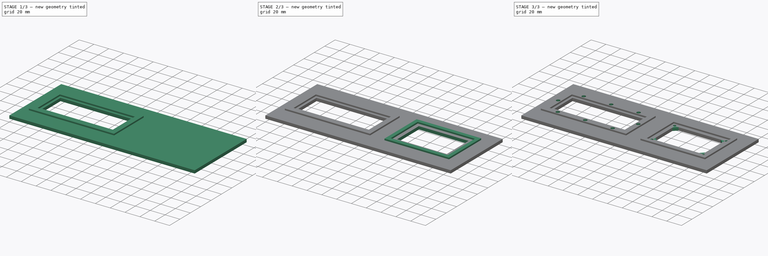
[diagram: build sequence overview — one tinted view per stage of 3, left to right]
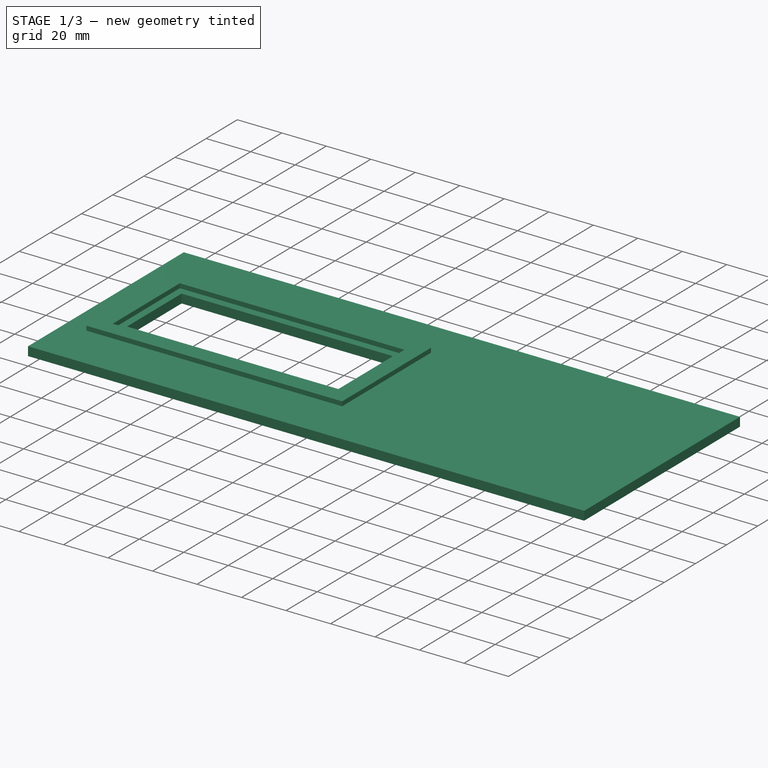
[diagram: stage 1 of 3 — iso view after this stage's code; geometry added in this stage tinted green]
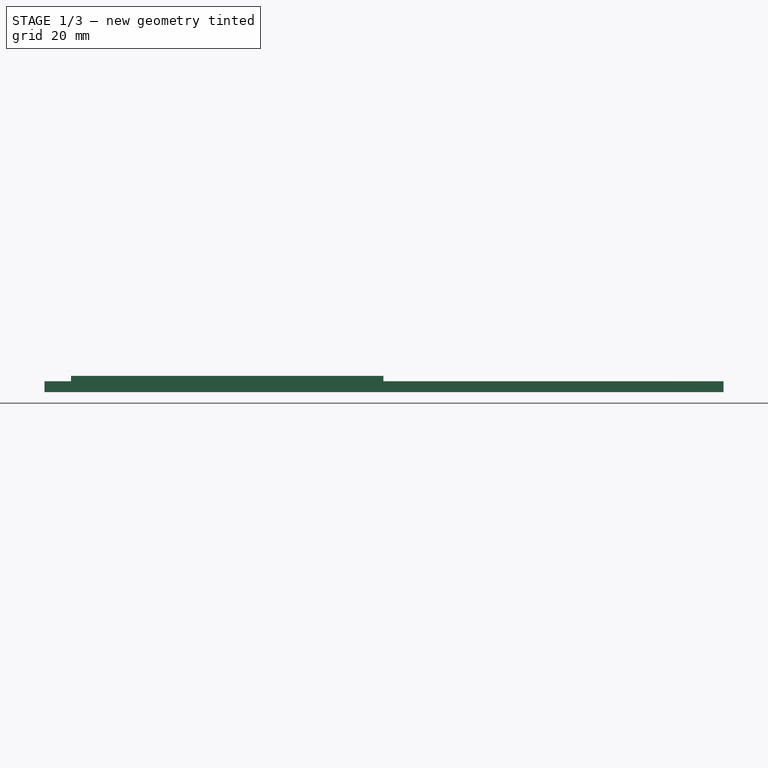
[diagram: stage 1 of 3 — front view after this stage's code; geometry added in this stage tinted green]
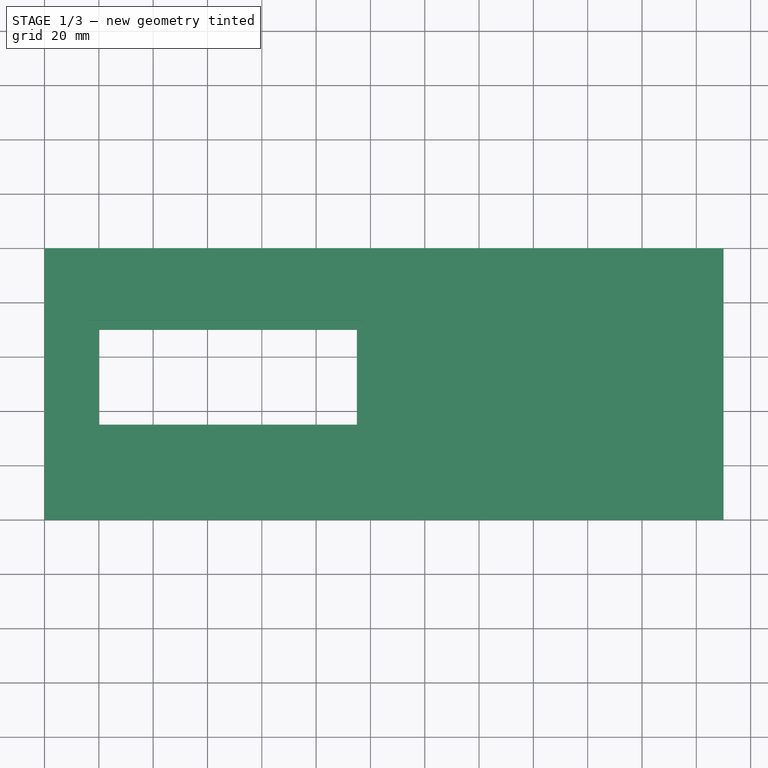
[diagram: stage 1 of 3 — top view after this stage's code; geometry added in this stage tinted green]
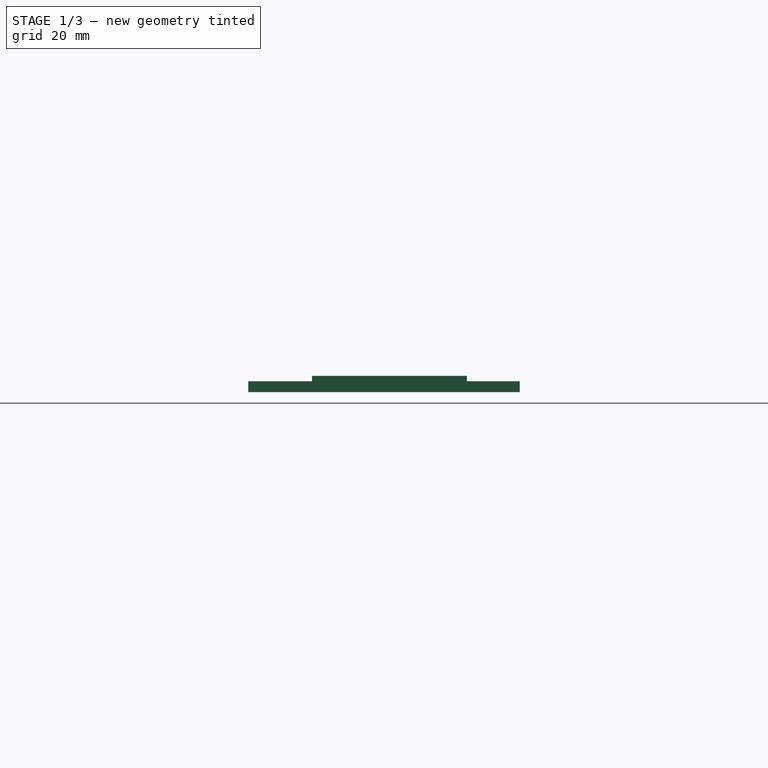
[diagram: stage 1 of 3 — right view after this stage's code; geometry added in this stage tinted green]
FCSTD DOCUMENT  (FreeCAD 0.16R6490 (Git))
Label: control_box_test_fixture_top
License: CreativeCommons Attribution-ShareAlike
LicenseURL: http://creativecommons.org/licenses/by-sa/4.0/
objects: Sketcher::SketchObject×7, PartDesign::Pocket×4, PartDesign::Pad×3, PartDesign::Chamfer×1
note: 22 computed .brp shape members not serialized (recipe doc carries the construction recipe); baked Part::Feature solids carry a one-line shape summary decoded from their .brp

FEATURE [Sketcher::SketchObject] Sketch
  Placement = pos=(0,-100,0) rot=(0,0,1;0rad)
  sketch-geometry (4):
    g0: LineSegment StartX=0 StartY=0 StartZ=0 EndX=250 EndY=0 EndZ=0
    g1: LineSegment StartX=250 StartY=0 StartZ=0 EndX=250 EndY=100 EndZ=0
    g2: LineSegment StartX=250 StartY=100 StartZ=0 EndX=0 EndY=100 EndZ=0
    g3: LineSegment StartX=0 StartY=100 StartZ=0 EndX=0 EndY=0 EndZ=0
  constraints (11):
    c: Coincident(g0,g1)
    c: Coincident(g1,g2)
    c: Coincident(g2,g3)
    c: Coincident(g3,g0)
    c: Horizontal(g0)
    c: Horizontal(g2)
    c: Vertical(g1)
    c: Vertical(g3)
    c: Coincident(g0,g-1)
    c: DistanceY(g3) = -100
    c: DistanceX(g2) = -250
FEATURE [PartDesign::Pad] Pad
  Length = 4
  Length2 = 100
  Placement = pos=(0,-100,0) rot=(0,0,1;0rad)
  Sketch = -> Sketch
  Type = 0
FEATURE [Sketcher::SketchObject] Sketch001
  Placement = pos=(0,-100,4) rot=(0,0,1;0rad)
  Support = -> Pad [Face6]
  sketch-geometry (4):
    g0: LineSegment StartX=20 StartY=70 StartZ=0 EndX=115 EndY=70 EndZ=0
    g1: LineSegment StartX=115 StartY=70 StartZ=0 EndX=115 EndY=35 EndZ=0
    g2: LineSegment StartX=115 StartY=35 StartZ=0 EndX=20 EndY=35 EndZ=0
    g3: LineSegment StartX=20 StartY=35 StartZ=0 EndX=20 EndY=70 EndZ=0
  constraints (12):
    c: Coincident(g0,g1)
    c: Coincident(g1,g2)
    c: Coincident(g2,g3)
    c: Coincident(g3,g0)
    c: Horizontal(g0)
    c: Horizontal(g2)
    c: Vertical(g1)
    c: Vertical(g3)
    c: DistanceY(g3) = 35
    c: DistanceX(g0) = 95
    c: DistanceY(g-1,g2) = 35
    c: DistanceX(g-1,g2) = 20
FEATURE [PartDesign::Pocket] Pocket
  Length = 5
  Placement = pos=(0,-100,0) rot=(0,0,1;0rad)
  Sketch = -> Sketch001
  Type = 0
FEATURE [Sketcher::SketchObject] Sketch002
  ExternalGeometry = -> [Pocket]
  Placement = pos=(0,-100,4) rot=(0,0,1;0rad)
  Support = -> Pocket [Face5]
  sketch-geometry (8):
    g0: LineSegment StartX=16.75 StartY=73.5 StartZ=0 EndX=117.75 EndY=73.5 EndZ=0
    g1: LineSegment StartX=117.75 StartY=73.5 StartZ=0 EndX=117.75 EndY=30.5 EndZ=0
    g2: LineSegment StartX=117.75 StartY=30.5 StartZ=0 EndX=16.75 EndY=30.5 EndZ=0
    g3: LineSegment StartX=16.75 StartY=30.5 StartZ=0 EndX=16.75 EndY=73.5 EndZ=0
    g4: LineSegment StartX=9.75 StartY=80.5 StartZ=0 EndX=124.75 EndY=80.5 EndZ=0
    g5: LineSegment StartX=124.75 StartY=80.5 StartZ=0 EndX=124.75 EndY=23.5 EndZ=0
    g6: LineSegment StartX=124.75 StartY=23.5 StartZ=0 EndX=9.75 EndY=23.5 EndZ=0
    g7: LineSegment StartX=9.75 StartY=23.5 StartZ=0 EndX=9.75 EndY=80.5 EndZ=0
  constraints (24):
    c: Coincident(g0,g1)
    c: Coincident(g1,g2)
    c: Coincident(g2,g3)
    c: Coincident(g3,g0)
    c: Horizontal(g0)
    c: Horizontal(g2)
    c: Vertical(g1)
    c: Vertical(g3)
    c: DistanceY(g3) = 43
    c: DistanceX(g0) = 101
    c: DistanceY(g-4,g2) = -4.5
    c: DistanceX(g-4,g2) = -3.25
    c: Coincident(g4,g5)
    c: Coincident(g5,g6)
    c: Coincident(g6,g7)
    c: Coincident(g7,g4)
    c: Horizontal(g4)
    c: Horizontal(g6)
    c: Vertical(g5)
    c: Vertical(g7)
    c: DistanceY(g6,g2) = 7
    c: DistanceX(g2,g6) = -7
    c: DistanceY(g0,g4) = 7
    c: DistanceX(g0,g4) = 7
FEATURE [PartDesign::Pad] Pad001
  Length = 2
  Length2 = 100
  Placement = pos=(0,-100,0) rot=(0,0,1;0rad)
  Sketch = -> Sketch002
  Type = 0
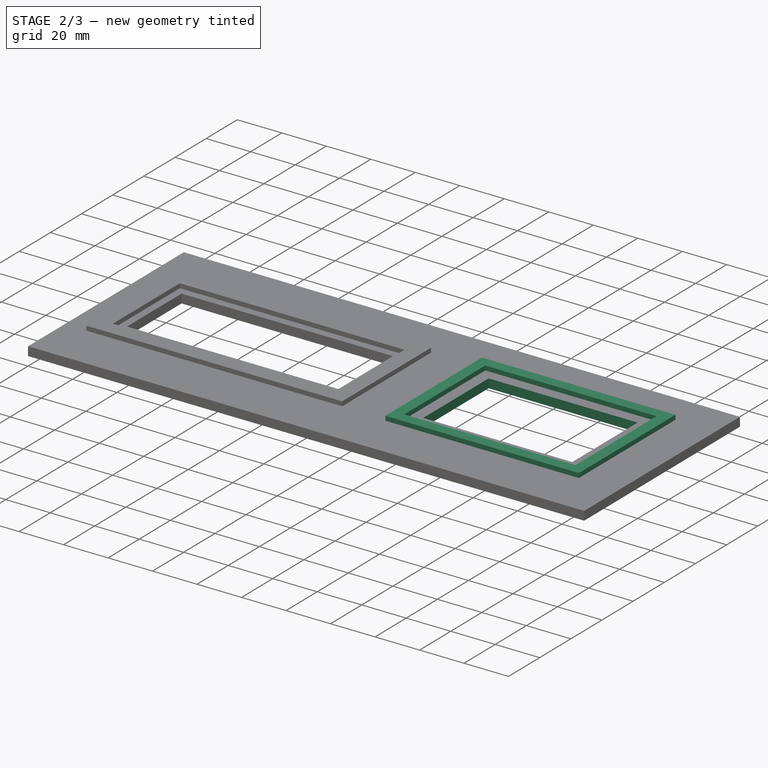
[diagram: stage 2 of 3 — iso view after this stage's code; geometry added in this stage tinted green]
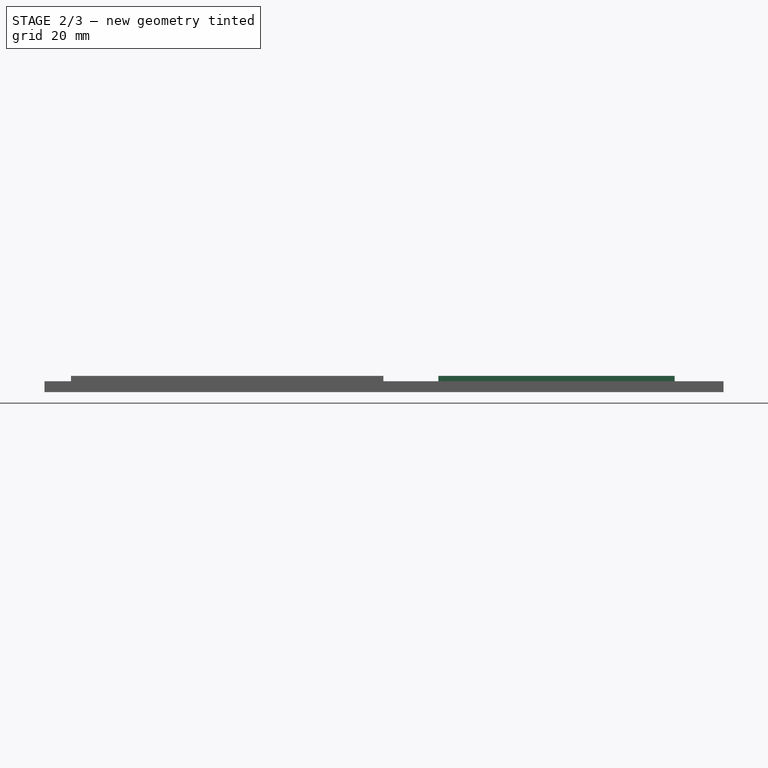
[diagram: stage 2 of 3 — front view after this stage's code; geometry added in this stage tinted green]
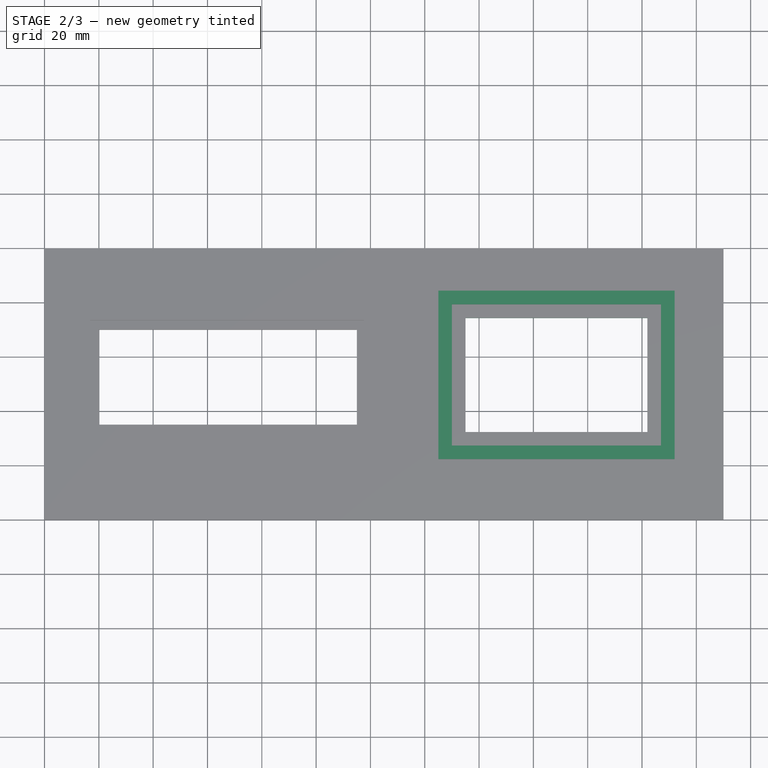
[diagram: stage 2 of 3 — top view after this stage's code; geometry added in this stage tinted green]
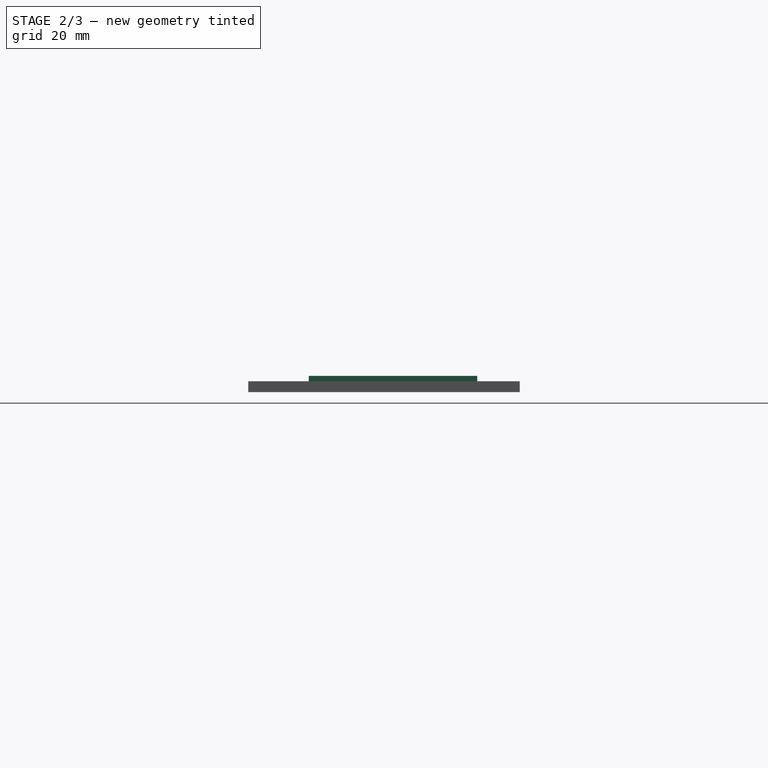
[diagram: stage 2 of 3 — right view after this stage's code; geometry added in this stage tinted green]
FEATURE [Sketcher::SketchObject] Sketch003
  Placement = pos=(0,-100,4) rot=(0,0,1;0rad)
  Support = -> Pad001 [Face5]
  sketch-geometry (8):
    g0: LineSegment StartX=150 StartY=27.3141 StartZ=0 EndX=227 EndY=27.3141 EndZ=0
    g1: LineSegment StartX=227 StartY=27.3141 StartZ=0 EndX=227 EndY=79.3141 EndZ=0
    g2: LineSegment StartX=227 StartY=79.3141 StartZ=0 EndX=150 EndY=79.3141 EndZ=0
    g3: LineSegment StartX=150 StartY=79.3141 StartZ=0 EndX=150 EndY=27.3141 EndZ=0
    g4: LineSegment StartX=145 StartY=84.3141 StartZ=0 EndX=232 EndY=84.3141 EndZ=0
    g5: LineSegment StartX=232 StartY=84.3141 StartZ=0 EndX=232 EndY=22.3141 EndZ=0
    g6: LineSegment StartX=232 StartY=22.3141 StartZ=0 EndX=145 EndY=22.3141 EndZ=0
    g7: LineSegment StartX=145 StartY=22.3141 StartZ=0 EndX=145 EndY=84.3141 EndZ=0
  constraints (22):
    c: Coincident(g0,g1)
    c: Coincident(g1,g2)
    c: Coincident(g2,g3)
    c: Coincident(g3,g0)
    c: Horizontal(g0)
    c: Horizontal(g2)
    c: Vertical(g1)
    c: Vertical(g3)
    c: DistanceX(g0) = 77
    c: DistanceY(g1) = 52
    c: Coincident(g4,g5)
    c: Coincident(g5,g6)
    c: Coincident(g6,g7)
    c: Coincident(g7,g4)
    c: Horizontal(g4)
    c: Horizontal(g6)
    c: Vertical(g5)
    c: Vertical(g7)
    c: DistanceY(g0,g6) = -5
    c: DistanceX(g0,g6) = -5
    c: DistanceY(g4,g1) = -5
    c: DistanceX(g4,g1) = -5
FEATURE [PartDesign::Pad] Pad002
  Length = 2
  Length2 = 100
  Placement = pos=(0,-100,0) rot=(0,0,1;0rad)
  Sketch = -> Sketch003
  Type = 0
FEATURE [Sketcher::SketchObject] Sketch004
  ExternalGeometry = -> [Pad002]
  Placement = pos=(0,-100,4) rot=(0,0,1;0rad)
  Support = -> Pad002 [Face30]
  sketch-geometry (4):
    g0: LineSegment StartX=155 StartY=74.3141 StartZ=0 EndX=222 EndY=74.3141 EndZ=0
    g1: LineSegment StartX=222 StartY=74.3141 StartZ=0 EndX=222 EndY=32.3141 EndZ=0
    g2: LineSegment StartX=222 StartY=32.3141 StartZ=0 EndX=155 EndY=32.3141 EndZ=0
    g3: LineSegment StartX=155 StartY=32.3141 StartZ=0 EndX=155 EndY=74.3141 EndZ=0
  constraints (12):
    c: Coincident(g0,g1)
    c: Coincident(g1,g2)
    c: Coincident(g2,g3)
    c: Coincident(g3,g0)
    c: Horizontal(g0)
    c: Horizontal(g2)
    c: Vertical(g1)
    c: Vertical(g3)
    c: DistanceX(g0,g-3) = -5
    c: DistanceY(g0,g-3) = 5
    c: DistanceX(g-4,g1) = -5
    c: DistanceY(g1,g-4) = -5
FEATURE [PartDesign::Pocket] Pocket001
  Length = 5
  Placement = pos=(0,-100,0) rot=(0,0,1;0rad)
  Sketch = -> Sketch004
  Type = 0
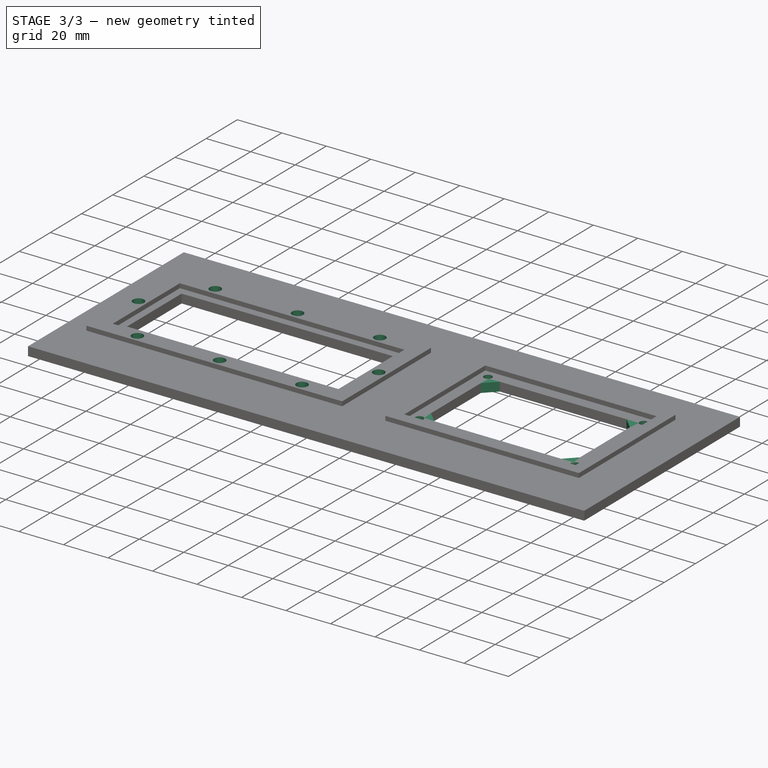
[diagram: stage 3 of 3 — iso view after this stage's code; geometry added in this stage tinted green]
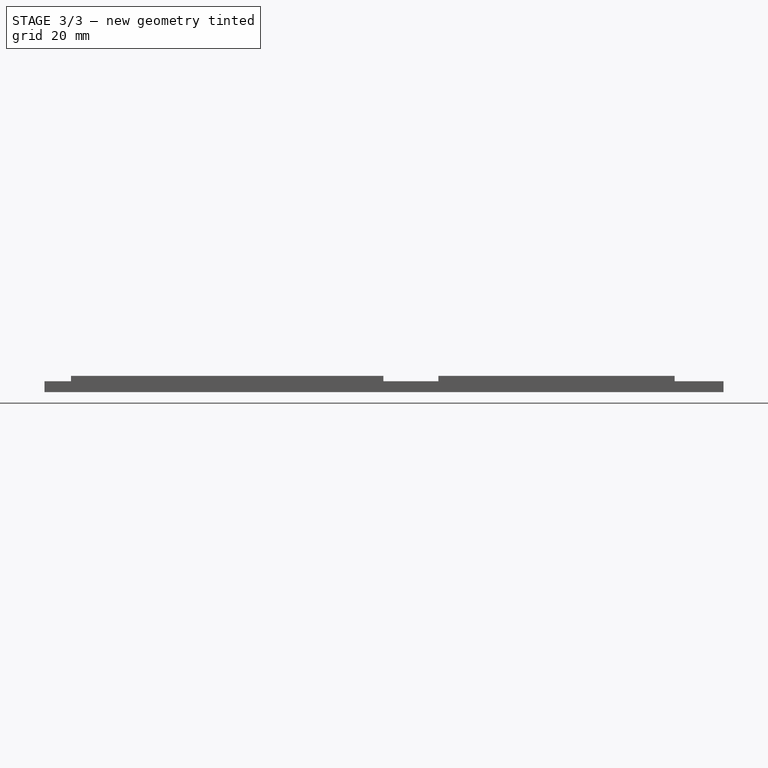
[diagram: stage 3 of 3 — front view after this stage's code; geometry added in this stage tinted green]
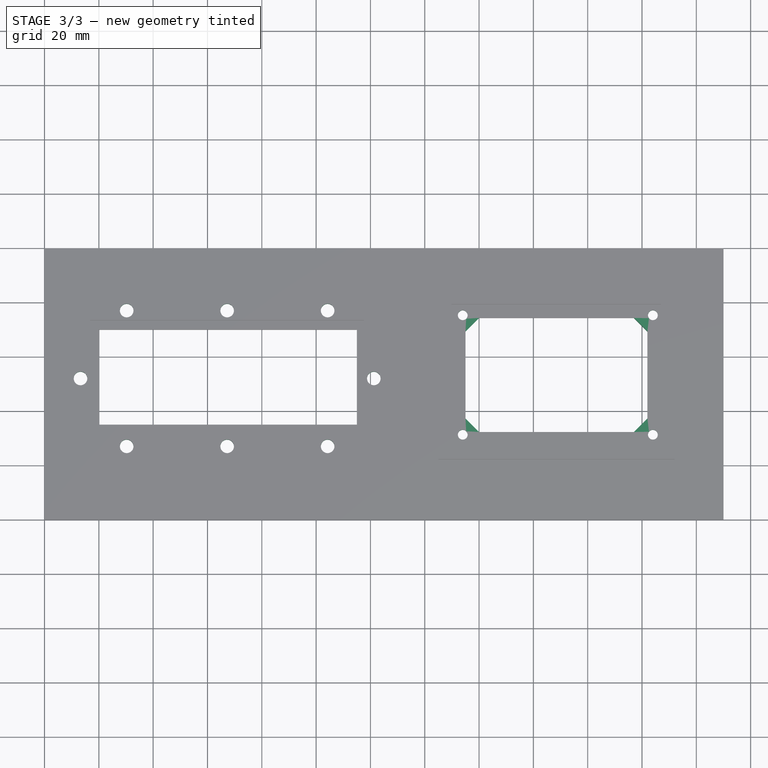
[diagram: stage 3 of 3 — top view after this stage's code; geometry added in this stage tinted green]
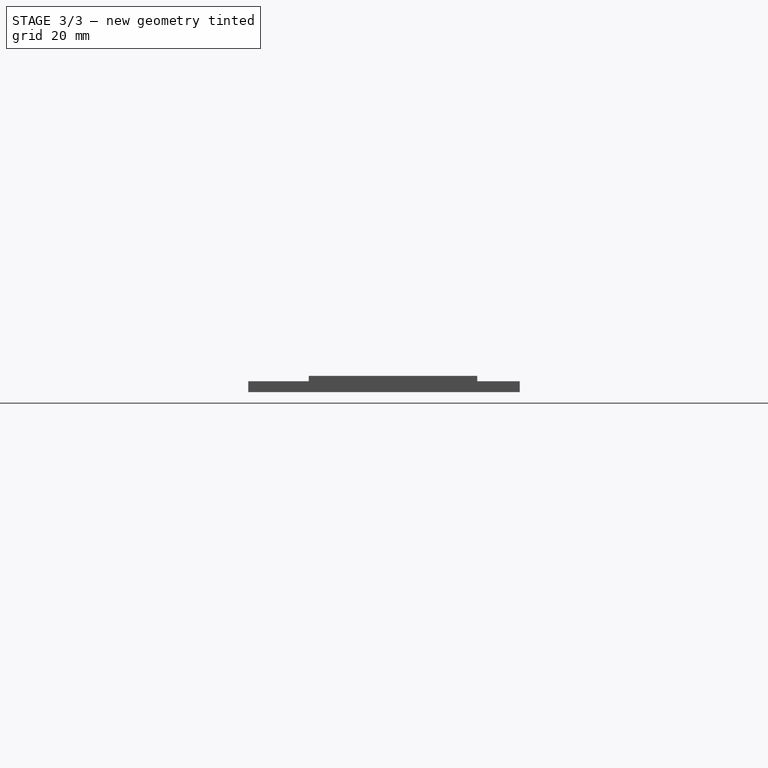
[diagram: stage 3 of 3 — right view after this stage's code; geometry added in this stage tinted green]
FEATURE [PartDesign::Chamfer] Chamfer
  Base = -> Pocket001 [Edge39,Edge38,Edge41,Edge43]
  Placement = pos=(0,-100,0) rot=(0,0,1;0rad)
  Size = 5
FEATURE [Sketcher::SketchObject] Sketch005
  ExternalGeometry = -> [Chamfer]
  Placement = pos=(0,-100,4) rot=(0,0,1;0rad)
  Support = -> Chamfer [Face18]
  sketch-geometry (8):
    g0: LineSegment [constr] StartX=154 StartY=75.3141 StartZ=0 EndX=224 EndY=75.3141 EndZ=0
    g1: LineSegment [constr] StartX=224 StartY=75.3141 StartZ=0 EndX=224 EndY=31.3141 EndZ=0
    g2: LineSegment [constr] StartX=224 StartY=31.3141 StartZ=0 EndX=154 EndY=31.3141 EndZ=0
    g3: LineSegment [constr] StartX=154 StartY=31.3141 StartZ=0 EndX=154 EndY=75.3141 EndZ=0
    g4: Circle CenterX=154 CenterY=75.3141 CenterZ=0 NormalX=0 NormalY=0 NormalZ=1 Radius=1.8
    g5: Circle CenterX=154 CenterY=31.3141 CenterZ=0 NormalX=0 NormalY=0 NormalZ=1 Radius=1.8
    g6: Circle CenterX=224 CenterY=31.3141 CenterZ=0 NormalX=0 NormalY=0 NormalZ=1 Radius=1.8
    g7: Circle CenterX=224 CenterY=75.3141 CenterZ=0 NormalX=0 NormalY=0 NormalZ=1 Radius=1.8
  constraints (20):
    c: Coincident(g0,g1)
    c: Coincident(g1,g2)
    c: Coincident(g3,g0)
    c: Horizontal(g0)
    c: Horizontal(g2)
    c: Vertical(g1)
    c: Vertical(g3)
    c: Coincident(g0,g4)
    c: Coincident(g0,g7)
    c: Coincident(g1,g6)
    c: Radius(g4) = 1.8
    c: Equal(g4,g7)
    c: Equal(g4,g6)
    c: Equal(g4,g5)
    c: DistanceX(g0) = 70
    c: DistanceY(g3) = 44
    c: DistanceX(g-4,g2) = 4
    c: Coincident(g2,g3)
    c: Coincident(g2,g5)
    c: DistanceY(g2,g-4) = -4
FEATURE [PartDesign::Pocket] Pocket002
  Length = 5
  Placement = pos=(0,-100,0) rot=(0,0,1;0rad)
  Sketch = -> Sketch005
  Type = 0
FEATURE [Sketcher::SketchObject] Sketch006
  ExternalGeometry = -> [Pocket002]
  Placement = pos=(0,-100,6) rot=(0,0,1;0rad)
  Support = -> Pocket002 [Face41]
  sketch-geometry (12):
    g0: LineSegment [constr] StartX=13.25 StartY=77 StartZ=0 EndX=121.25 EndY=77 EndZ=0
    g1: LineSegment [constr] StartX=121.25 StartY=77 StartZ=0 EndX=121.25 EndY=27 EndZ=0
    g2: LineSegment [constr] StartX=121.25 StartY=27 StartZ=0 EndX=13.25 EndY=27 EndZ=0
    g3: LineSegment [constr] StartX=13.25 StartY=27 StartZ=0 EndX=13.25 EndY=77 EndZ=0
    g4: Circle CenterX=30.25 CenterY=77 CenterZ=0 NormalX=0 NormalY=0 NormalZ=1 Radius=2.5
    g5: Circle CenterX=67.25 CenterY=77 CenterZ=0 NormalX=0 NormalY=0 NormalZ=1 Radius=2.5
    g6: Circle CenterX=104.25 CenterY=77 CenterZ=0 NormalX=0 NormalY=0 NormalZ=1 Radius=2.5
    g7: Circle CenterX=121.25 CenterY=52 CenterZ=0 NormalX=0 NormalY=0 NormalZ=1 Radius=2.5
    g8: Circle CenterX=104.25 CenterY=27 CenterZ=0 NormalX=0 NormalY=0 NormalZ=1 Radius=2.5
    g9: Circle CenterX=67.25 CenterY=27 CenterZ=0 NormalX=0 NormalY=0 NormalZ=1 Radius=2.5
    g10: Circle CenterX=30.25 CenterY=27 CenterZ=0 NormalX=0 NormalY=0 NormalZ=1 Radius=2.5
    g11: Circle CenterX=13.25 CenterY=52 CenterZ=0 NormalX=0 NormalY=0 NormalZ=1 Radius=2.5
  constraints (30):
    c: Coincident(g0,g1)
    c: Coincident(g1,g2)
    c: Coincident(g2,g3)
    c: Coincident(g3,g0)
    c: Horizontal(g0)
    c: Horizontal(g2)
    c: Vertical(g1)
    c: Vertical(g3)
    c: PointOnObject(g4,g0)
    c: PointOnObject(g5,g0)
    c: PointOnObject(g6,g0)
    c: PointOnObject(g7,g1)
    c: PointOnObject(g8,g2)
    c: PointOnObject(g9,g2)
    c: PointOnObject(g10,g2)
    c: PointOnObject(g11,g3)
    c: Radius(g4) = 2.5
    c: Equal(g4, g5-g11) x7
    c: DistanceX(g9,g5) = 0
    c: DistanceX(g4,g10) = 0
    c: DistanceX(g6,g8) = 0
    c: DistanceX(g9,g10) = -37
    c: DistanceX(g9,g8) = 37
    c: DistanceY(g11,g7) = 0
    c: DistanceY(g3) = 50
    c: DistanceX(g2) = -108
    c: DistanceY(g11,g2) = -25
    c: DistanceX(g10,g2) = -17
    c: DistanceX(g2,g-3) = -3.5
    c: DistanceY(g2,g-3) = -3.5
FEATURE [PartDesign::Pocket] Pocket003
  Length = 5
  Placement = pos=(0,-100,0) rot=(0,0,1;0rad)
  Sketch = -> Sketch006
  Type = 1
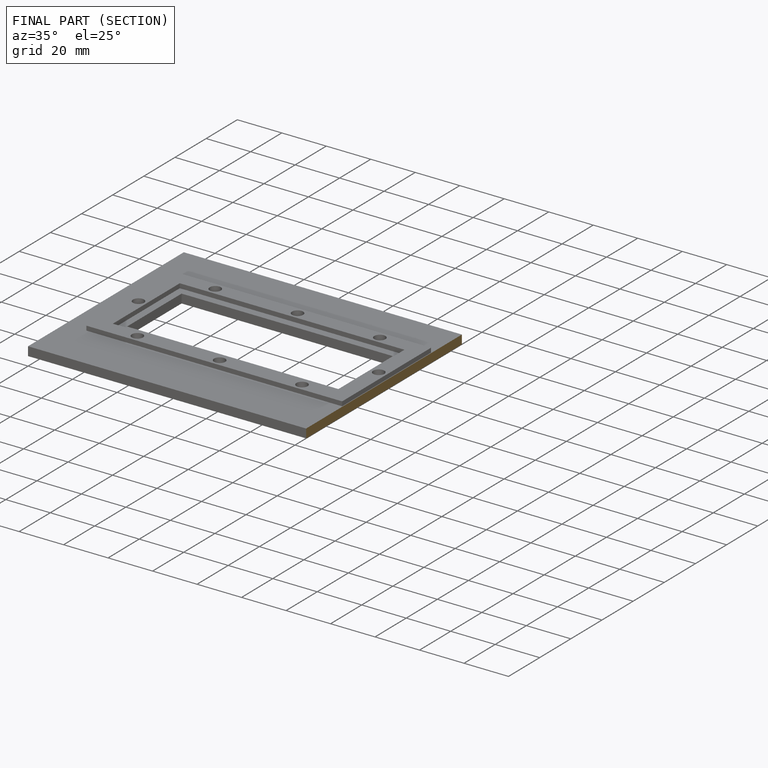
[diagram: finished part — half-section view (interior)]
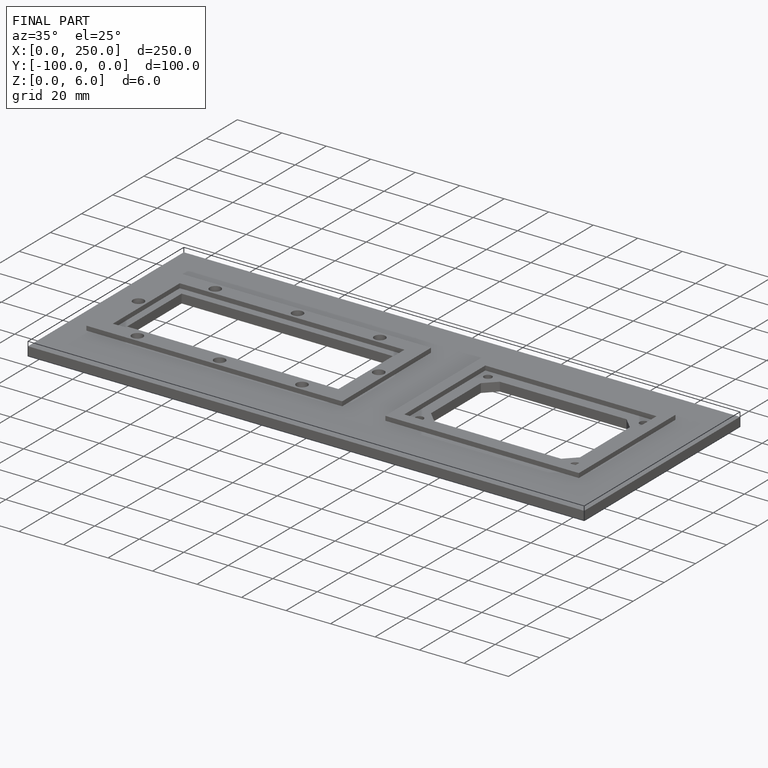
[diagram: finished part — iso view with bounding-box wireframe]
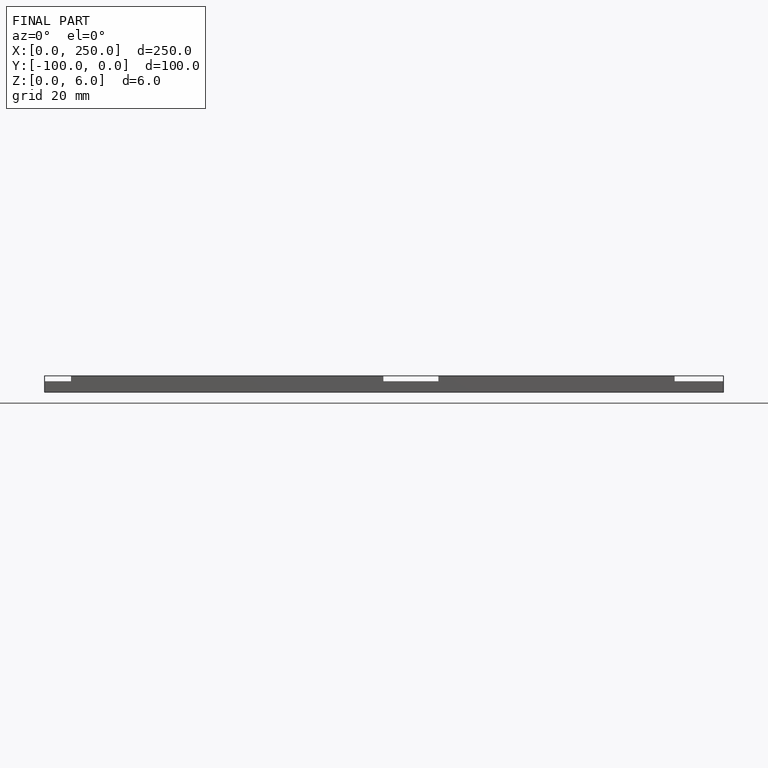
[diagram: finished part — front view with bounding-box wireframe]
